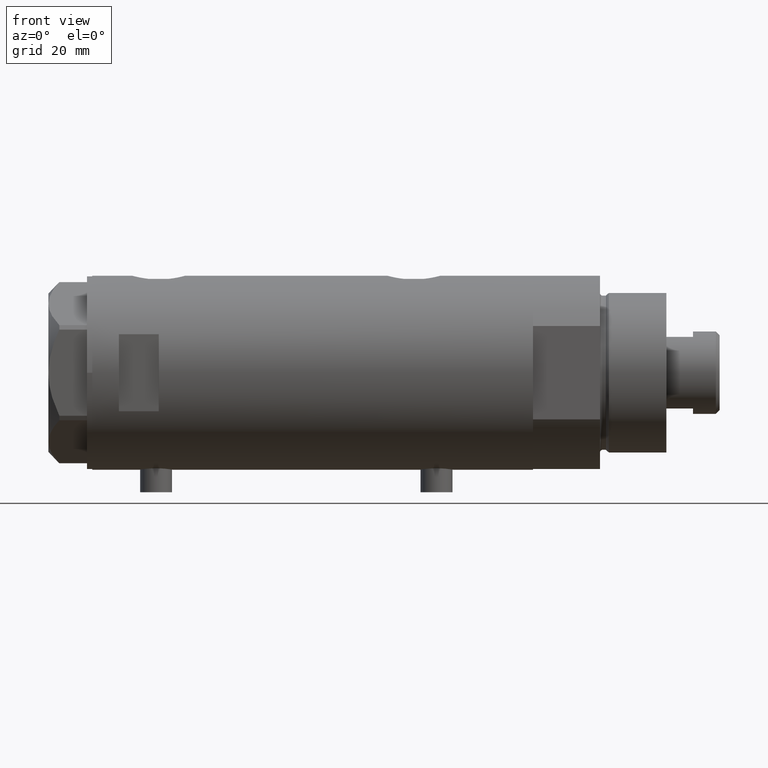
[diagram: clean part render]
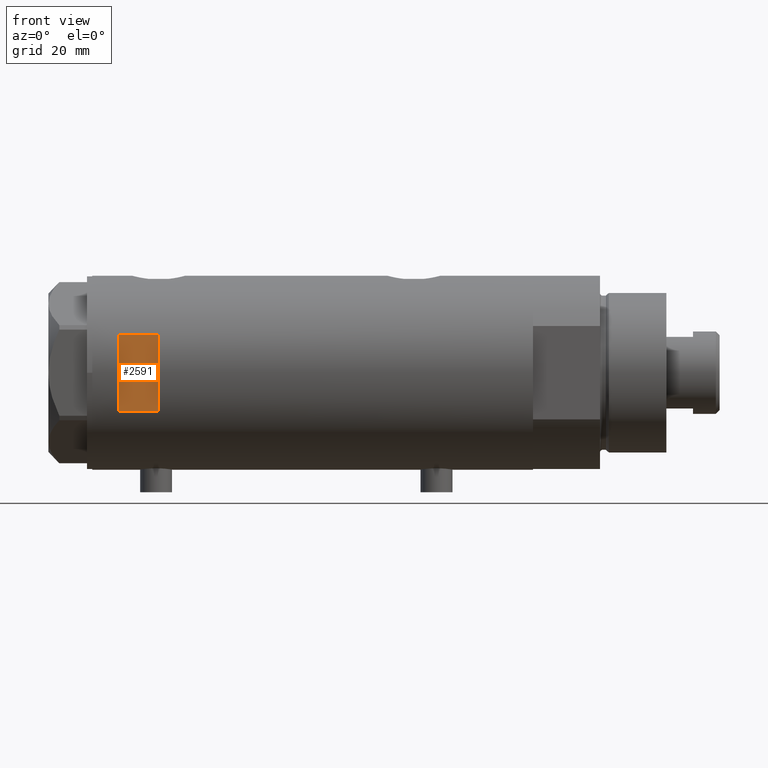
[diagram: same view with one face highlighted and labeled with its STEP entity id]
A machine part, front view. The second image highlights one B-rep face of the part: STEP entity #2591.
In plain terms, the highlighted planar face has unit normal (-0, 1, 0).
Its self-contained STEP definition (entity closure, byte-faithful):
#174 = VERTEX_POINT ( 'NONE', #3451 ) ;
#279 = EDGE_LOOP ( 'NONE', ( #3990, #4661, #346, #1627 ) ) ;
#346 = ORIENTED_EDGE ( 'NONE', *, *, #3325, .T. ) ;
#402 = CARTESIAN_POINT ( 'NONE',  ( 14.49137674618942739, -33.50000000000000000, 72.89999999999999147 ) ) ;
#445 = EDGE_CURVE ( 'NONE', #2199, #4669, #3252, .T. ) ;
#566 = VECTOR ( 'NONE', #4223, 1000.000000000000000 ) ;
#644 = CARTESIAN_POINT ( 'NONE',  ( -36.50000000000000000, -33.50000000000000000, 72.89999999999999147 ) ) ;
#862 = CARTESIAN_POINT ( 'NONE',  ( 14.49137674618942739, -33.50000000000000000, 57.89999999999999147 ) ) ;
#882 = DIRECTION ( 'NONE',  ( -0.000000000000000000, -0.000000000000000000, -1.000000000000000000 ) ) ;
#962 = CARTESIAN_POINT ( 'NONE',  ( 14.49137674618942739, -33.50000000000000000, -82.90000000000000568 ) ) ;
#1436 = DIRECTION ( 'NONE',  ( 1.000000000000000000, -0.000000000000000000, -0.000000000000000000 ) ) ;
#1496 = LINE ( 'NONE', #4434, #4132 ) ;
#1534 = EDGE_CURVE ( 'NONE', #2199, #174, #1496, .T. ) ;
#1627 = ORIENTED_EDGE ( 'NONE', *, *, #445, .F. ) ;
#2199 = VERTEX_POINT ( 'NONE', #3697 ) ;
#2591 = ADVANCED_FACE ( 'NONE', ( #3206 ), #2839, .F. ) ;
#2655 = AXIS2_PLACEMENT_3D ( 'NONE', #644, #4441, #3773 ) ;
#2656 = VECTOR ( 'NONE', #1436, 1000.000000000000000 ) ;
#2703 = LINE ( 'NONE', #2976, #4517 ) ;
#2839 = PLANE ( 'NONE',  #2655 ) ;
#2976 = CARTESIAN_POINT ( 'NONE',  ( -36.50000000000000000, -33.50000000000000000, 57.89999999999999147 ) ) ;
#3142 = VERTEX_POINT ( 'NONE', #862 ) ;
#3206 = FACE_OUTER_BOUND ( 'NONE', #279, .T. ) ;
#3252 = LINE ( 'NONE', #4729, #2656 ) ;
#3325 = EDGE_CURVE ( 'NONE', #3142, #4669, #4559, .T. ) ;
#3451 = CARTESIAN_POINT ( 'NONE',  ( -14.49137674618942739, -33.50000000000000000, 57.89999999999999147 ) ) ;
#3697 = CARTESIAN_POINT ( 'NONE',  ( -14.49137674618942739, -33.50000000000000000, 72.89999999999999147 ) ) ;
#3773 = DIRECTION ( 'NONE',  ( 0.000000000000000000, -0.000000000000000000, 1.000000000000000000 ) ) ;
#3926 = EDGE_CURVE ( 'NONE', #174, #3142, #2703, .T. ) ;
#3990 = ORIENTED_EDGE ( 'NONE', *, *, #1534, .T. ) ;
#4132 = VECTOR ( 'NONE', #882, 1000.000000000000000 ) ;
#4223 = DIRECTION ( 'NONE',  ( 0.000000000000000000, 0.000000000000000000, 1.000000000000000000 ) ) ;
#4434 = CARTESIAN_POINT ( 'NONE',  ( -14.49137674618942739, -33.50000000000000000, -82.90000000000000568 ) ) ;
#4441 = DIRECTION ( 'NONE',  ( 0.000000000000000000, 1.000000000000000000, 0.000000000000000000 ) ) ;
#4517 = VECTOR ( 'NONE', #4546, 1000.000000000000000 ) ;
#4546 = DIRECTION ( 'NONE',  ( 1.000000000000000000, -0.000000000000000000, -0.000000000000000000 ) ) ;
#4559 = LINE ( 'NONE', #962, #566 ) ;
#4661 = ORIENTED_EDGE ( 'NONE', *, *, #3926, .T. ) ;
#4669 = VERTEX_POINT ( 'NONE', #402 ) ;
#4729 = CARTESIAN_POINT ( 'NONE',  ( -36.50000000000000000, -33.50000000000000000, 72.89999999999999147 ) ) ;